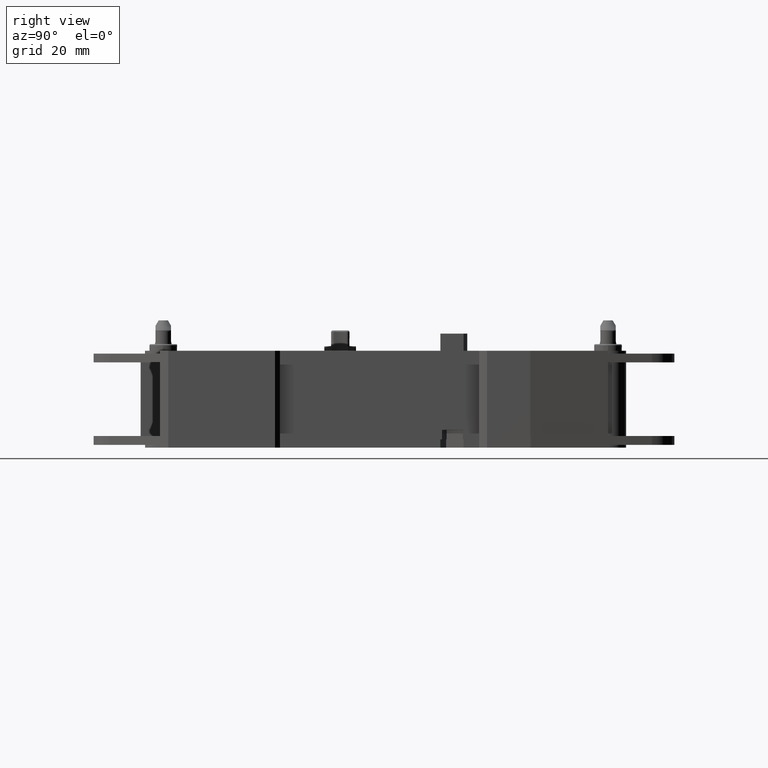
[diagram: clean part render]
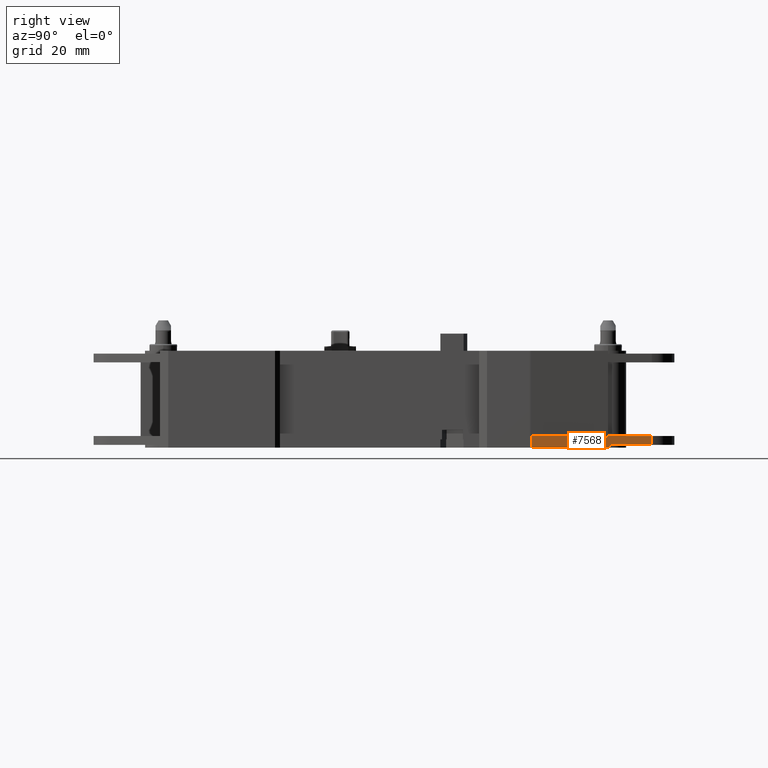
[diagram: same view with one face highlighted and labeled with its STEP entity id]
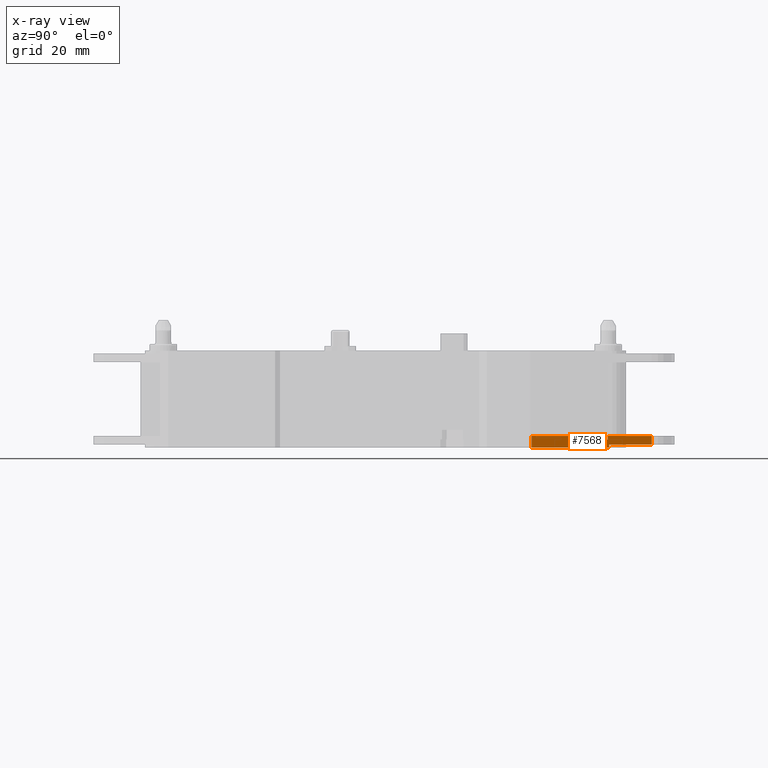
[diagram: x-ray of the same camera — body ghosted, the highlighted face saturated]
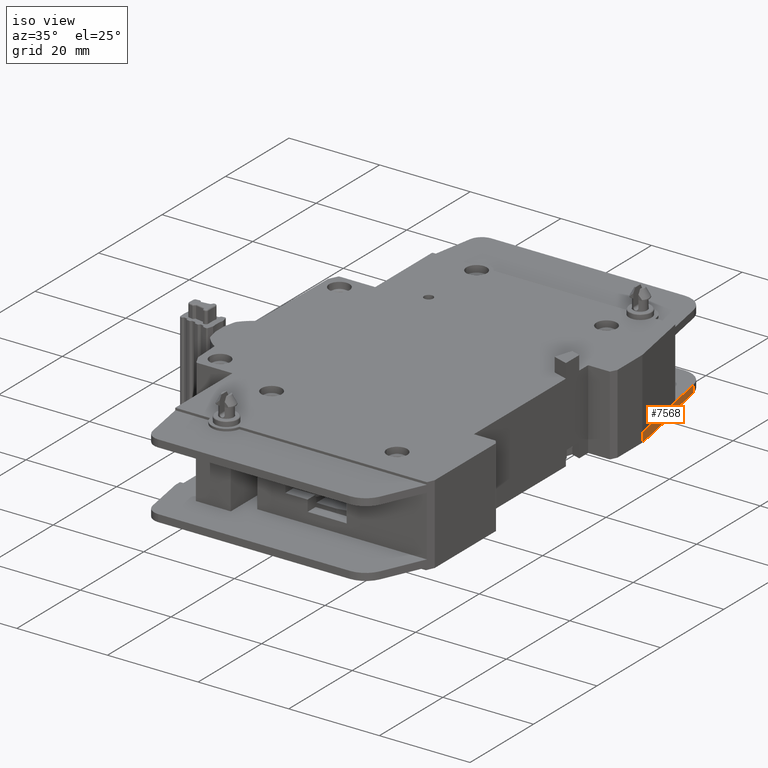
[diagram: same view with one face highlighted and labeled with its STEP entity id]
A machine part, right view. The second image highlights one B-rep face of the part: STEP entity #7568.
The next image is the same camera in x-ray: the body ghosted, the highlighted face saturated — about 0% of this face is hidden behind the body in this view.
A second angle (iso view) of the same face is appended — the face is thin or edge-on in the first view.
In plain terms, the highlighted planar face has unit normal (0.9833, 0.1821, 0).
Its self-contained STEP definition (entity closure, byte-faithful):
#318 = CARTESIAN_POINT ( 'NONE',  ( 1.845290172061811118, 1.602362204724409711, 0.0000000000000000000 ) ) ;
#369 = CARTESIAN_POINT ( 'NONE',  ( 1.789075194656435386, 1.905923082713001593, 0.08267716535433072833 ) ) ;
#527 = PLANE ( 'NONE',  #5504 ) ;
#560 = ORIENTED_EDGE ( 'NONE', *, *, #2036, .F. ) ;
#1116 = VERTEX_POINT ( 'NONE', #4860 ) ;
#2036 = EDGE_CURVE ( 'NONE', #27119, #2867, #15822, .T. ) ;
#2782 = EDGE_CURVE ( 'NONE', #25710, #27119, #14775, .T. ) ;
#2867 = VERTEX_POINT ( 'NONE', #29980 ) ;
#3342 = DIRECTION ( 'NONE',  ( 0.0000000000000000000, -0.0000000000000000000, -1.000000000000000000 ) ) ;
#3393 = EDGE_CURVE ( 'NONE', #10990, #29336, #19708, .T. ) ;
#4130 = ORIENTED_EDGE ( 'NONE', *, *, #18219, .F. ) ;
#4860 = CARTESIAN_POINT ( 'NONE',  ( 1.850393700771473915, 1.574803149692360460, 0.08267716535433081160 ) ) ;
#4880 = VERTEX_POINT ( 'NONE', #13133 ) ;
#5287 = ORIENTED_EDGE ( 'NONE', *, *, #13305, .T. ) ;
#5357 = VERTEX_POINT ( 'NONE', #23551 ) ;
#5504 = AXIS2_PLACEMENT_3D ( 'NONE', #10498, #17673, #15546 ) ;
#5719 = LINE ( 'NONE', #23502, #18048 ) ;
#5939 = ORIENTED_EDGE ( 'NONE', *, *, #20545, .T. ) ;
#6357 = VECTOR ( 'NONE', #22536, 39.37007874015748854 ) ;
#7568 = ADVANCED_FACE ( 'NONE', ( #17510 ), #527, .T. ) ;
#7658 = EDGE_LOOP ( 'NONE', ( #5939, #15874, #11284, #24727, #32241, #5287, #560, #12640, #4130, #23863 ) ) ;
#8162 = DIRECTION ( 'NONE',  ( 0.1820892601823826118, -0.9832820049844462895, 0.0000000000000000000 ) ) ;
#8815 = DIRECTION ( 'NONE',  ( 0.0000000000000000000, 0.0000000000000000000, -1.000000000000000000 ) ) ;
#9274 = VECTOR ( 'NONE', #28949, 39.37007874015748143 ) ;
#9994 = CARTESIAN_POINT ( 'NONE',  ( 1.846748323126262470, 1.594488188976378229, 0.05905511811023624741 ) ) ;
#10188 = VECTOR ( 'NONE', #11205, 39.37007874015748854 ) ;
#10498 = CARTESIAN_POINT ( 'NONE',  ( 1.845290172061811118, 1.602362204724409711, 0.08267716535433072833 ) ) ;
#10686 = CARTESIAN_POINT ( 'NONE',  ( 1.846748323126261804, 1.594488188976378007, -4.312619414957868713 ) ) ;
#10990 = VERTEX_POINT ( 'NONE', #17726 ) ;
#11205 = DIRECTION ( 'NONE',  ( 0.1820892601823826118, -0.9832820049844462895, 0.0000000000000000000 ) ) ;
#11284 = ORIENTED_EDGE ( 'NONE', *, *, #3393, .F. ) ;
#11483 = CARTESIAN_POINT ( 'NONE',  ( 1.789075194656470247, 1.905923082713008032, 0.01968503937007873988 ) ) ;
#12524 = LINE ( 'NONE', #13015, #24333 ) ;
#12640 = ORIENTED_EDGE ( 'NONE', *, *, #2782, .F. ) ;
#13015 = CARTESIAN_POINT ( 'NONE',  ( 1.947502520077535326, 1.050415525439662545, 0.08267716535433072833 ) ) ;
#13133 = CARTESIAN_POINT ( 'NONE',  ( 1.846748323126261804, 1.594488188976378007, 0.08267716535433081160 ) ) ;
#13305 = EDGE_CURVE ( 'NONE', #30692, #2867, #12524, .T. ) ;
#13336 = VECTOR ( 'NONE', #3342, 39.37007874015748143 ) ;
#14086 = DIRECTION ( 'NONE',  ( 0.1820892601824723456, -0.9832820049844295252, 0.0000000000000000000 ) ) ;
#14218 = VECTOR ( 'NONE', #27050, 39.37007874015748143 ) ;
#14775 = LINE ( 'NONE', #24747, #14218 ) ;
#15546 = DIRECTION ( 'NONE',  ( -0.1820892601823826118, 0.9832820049844461785, 0.0000000000000000000 ) ) ;
#15744 = LINE ( 'NONE', #10686, #13336 ) ;
#15822 = LINE ( 'NONE', #318, #6357 ) ;
#15874 = ORIENTED_EDGE ( 'NONE', *, *, #30837, .T. ) ;
#15928 = VERTEX_POINT ( 'NONE', #18229 ) ;
#16771 = CARTESIAN_POINT ( 'NONE',  ( 2.071001900624541037, 0.3835188704861899334, 0.05905511811023622659 ) ) ;
#16986 = LINE ( 'NONE', #19453, #9274 ) ;
#17510 = FACE_OUTER_BOUND ( 'NONE', #7658, .T. ) ;
#17673 = DIRECTION ( 'NONE',  ( 0.9832820049844462895, 0.1820892601823826396, 0.0000000000000000000 ) ) ;
#17726 = CARTESIAN_POINT ( 'NONE',  ( 1.850393700754818793, 1.574803149782462608, 0.05905511811023624741 ) ) ;
#17877 = VECTOR ( 'NONE', #19241, 39.37007874015748854 ) ;
#18048 = VECTOR ( 'NONE', #8162, 39.37007874015748854 ) ;
#18219 = EDGE_CURVE ( 'NONE', #5357, #25710, #31731, .T. ) ;
#18229 = CARTESIAN_POINT ( 'NONE',  ( 1.789075194656435386, 1.905923082713001593, 0.08267716535433072833 ) ) ;
#18694 = CARTESIAN_POINT ( 'NONE',  ( 1.947502520077535326, 1.050415525439662545, 0.08267716535433072833 ) ) ;
#19215 = CARTESIAN_POINT ( 'NONE',  ( 1.845290172061811118, 1.602362204724409711, 0.08267716535433072833 ) ) ;
#19241 = DIRECTION ( 'NONE',  ( -0.1820892601823826118, 0.9832820049844461785, 0.0000000000000000000 ) ) ;
#19453 = CARTESIAN_POINT ( 'NONE',  ( 1.850393700783160345, 1.574803149629135701, -4.312619414957868713 ) ) ;
#19622 = VECTOR ( 'NONE', #14086, 39.37007874015748854 ) ;
#19708 = LINE ( 'NONE', #16771, #17877 ) ;
#20049 = EDGE_CURVE ( 'NONE', #1116, #30692, #5719, .T. ) ;
#20545 = EDGE_CURVE ( 'NONE', #15928, #4880, #24114, .T. ) ;
#21987 = CARTESIAN_POINT ( 'NONE',  ( 1.845290172061811118, 1.602362204724409711, 0.0000000000000000000 ) ) ;
#22536 = DIRECTION ( 'NONE',  ( 0.1820892601823826118, -0.9832820049844462895, 0.0000000000000000000 ) ) ;
#22981 = DIRECTION ( 'NONE',  ( 0.0000000000000000000, 0.0000000000000000000, -1.000000000000000000 ) ) ;
#23355 = LINE ( 'NONE', #369, #29724 ) ;
#23502 = CARTESIAN_POINT ( 'NONE',  ( 1.845290172061811118, 1.602362204724409711, 0.08267716535433072833 ) ) ;
#23551 = CARTESIAN_POINT ( 'NONE',  ( 1.789075194656435386, 1.905923082713001593, 0.01968503937007873988 ) ) ;
#23863 = ORIENTED_EDGE ( 'NONE', *, *, #26557, .F. ) ;
#24114 = LINE ( 'NONE', #19215, #10188 ) ;
#24333 = VECTOR ( 'NONE', #22981, 39.37007874015748143 ) ;
#24396 = EDGE_CURVE ( 'NONE', #10990, #1116, #16986, .T. ) ;
#24727 = ORIENTED_EDGE ( 'NONE', *, *, #24396, .T. ) ;
#24747 = CARTESIAN_POINT ( 'NONE',  ( 1.845290172061811118, 1.602362204724409711, 0.08267716535433072833 ) ) ;
#24781 = CARTESIAN_POINT ( 'NONE',  ( 1.845290172061811118, 1.602362204724409711, 0.01968503937007873988 ) ) ;
#25710 = VERTEX_POINT ( 'NONE', #24781 ) ;
#26557 = EDGE_CURVE ( 'NONE', #15928, #5357, #23355, .T. ) ;
#27050 = DIRECTION ( 'NONE',  ( 0.0000000000000000000, 0.0000000000000000000, -1.000000000000000000 ) ) ;
#27119 = VERTEX_POINT ( 'NONE', #21987 ) ;
#28949 = DIRECTION ( 'NONE',  ( 0.0000000000000000000, -0.0000000000000000000, 1.000000000000000000 ) ) ;
#29336 = VERTEX_POINT ( 'NONE', #9994 ) ;
#29724 = VECTOR ( 'NONE', #8815, 39.37007874015748143 ) ;
#29980 = CARTESIAN_POINT ( 'NONE',  ( 1.947502520077535326, 1.050415525439662545, 0.0000000000000000000 ) ) ;
#30692 = VERTEX_POINT ( 'NONE', #18694 ) ;
#30837 = EDGE_CURVE ( 'NONE', #4880, #29336, #15744, .T. ) ;
#31731 = LINE ( 'NONE', #11483, #19622 ) ;
#32241 = ORIENTED_EDGE ( 'NONE', *, *, #20049, .T. ) ;